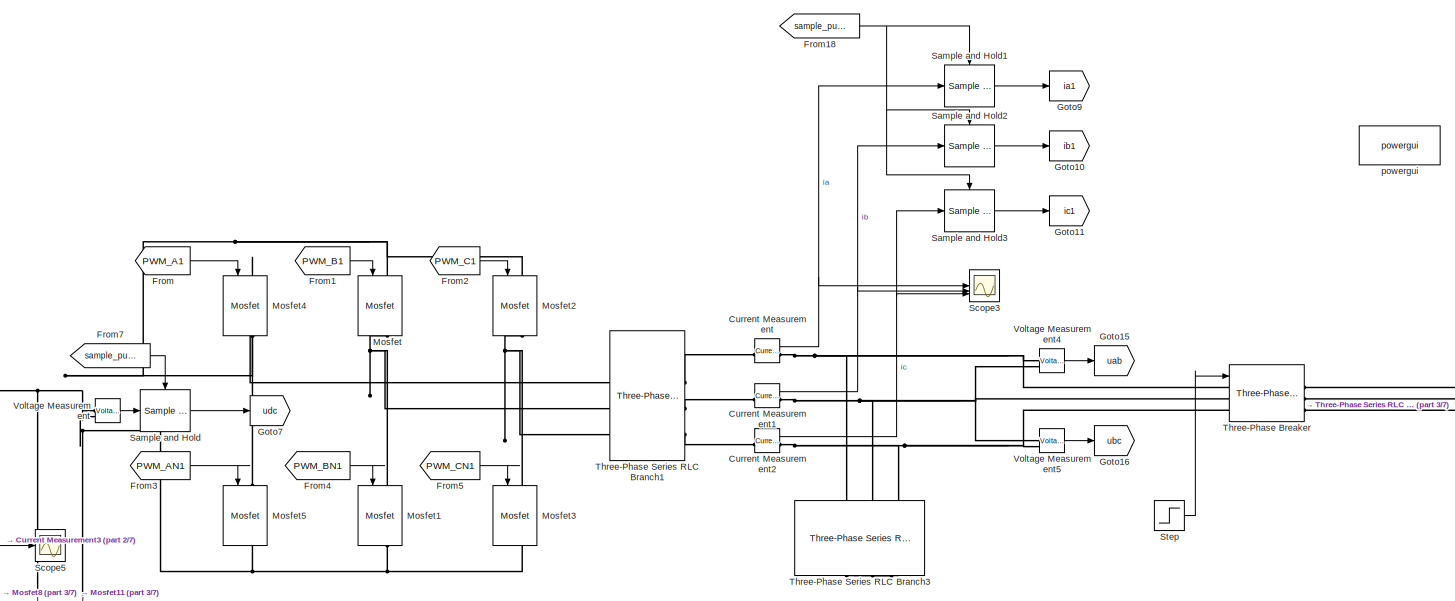
[diagram: root canvas - part 1/7, top right region]
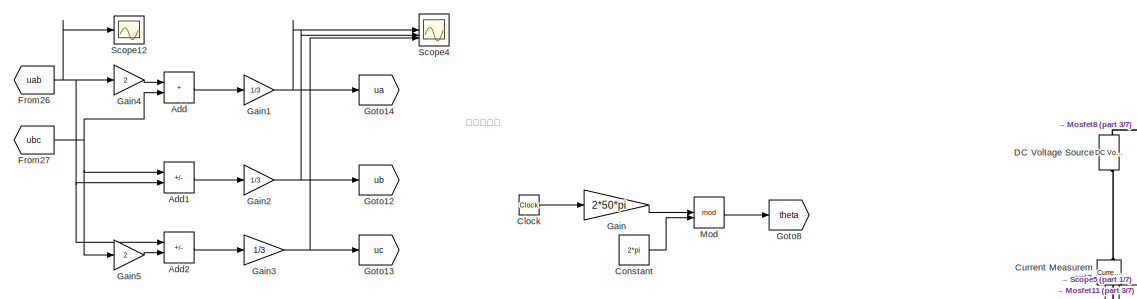
[diagram: root canvas - part 2/7, top center region]
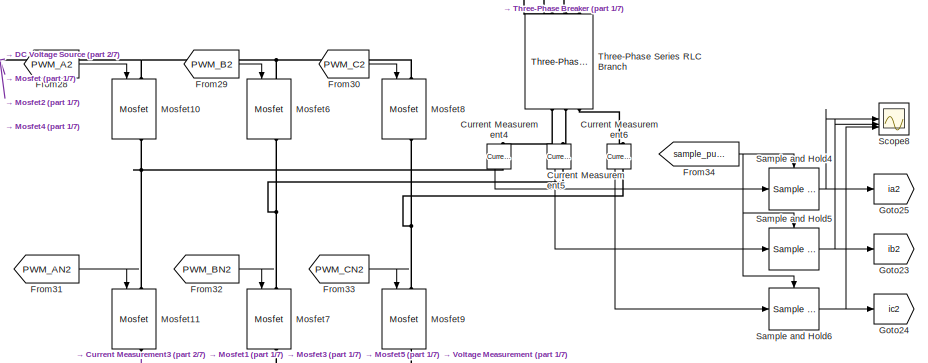
[diagram: root canvas - part 3/7, middle right region]
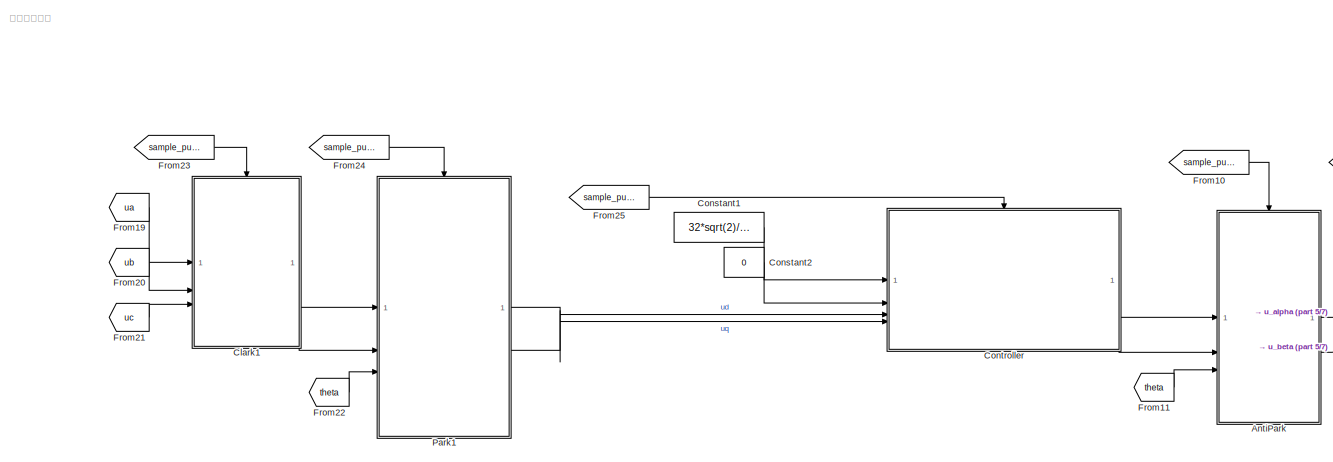
[diagram: root canvas - part 4/7, bottom left region]
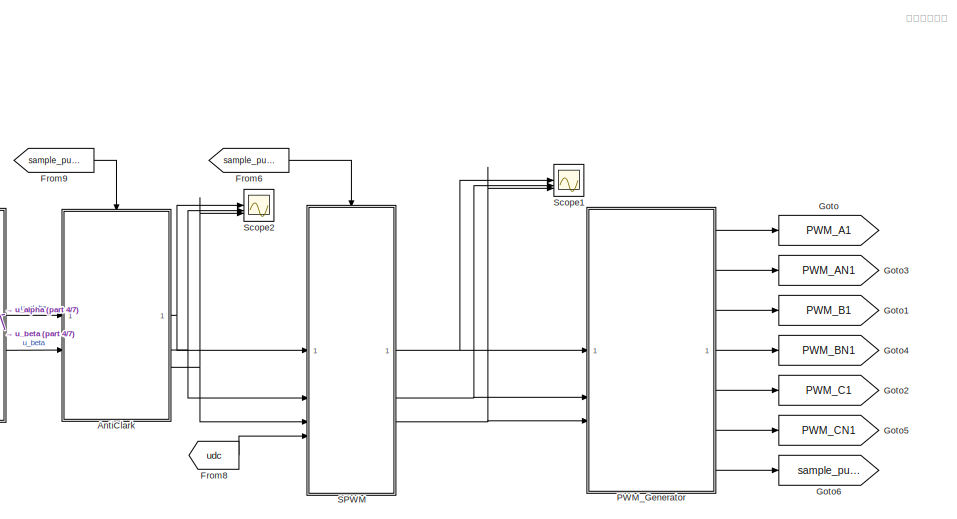
[diagram: root canvas - part 5/7, bottom center region]
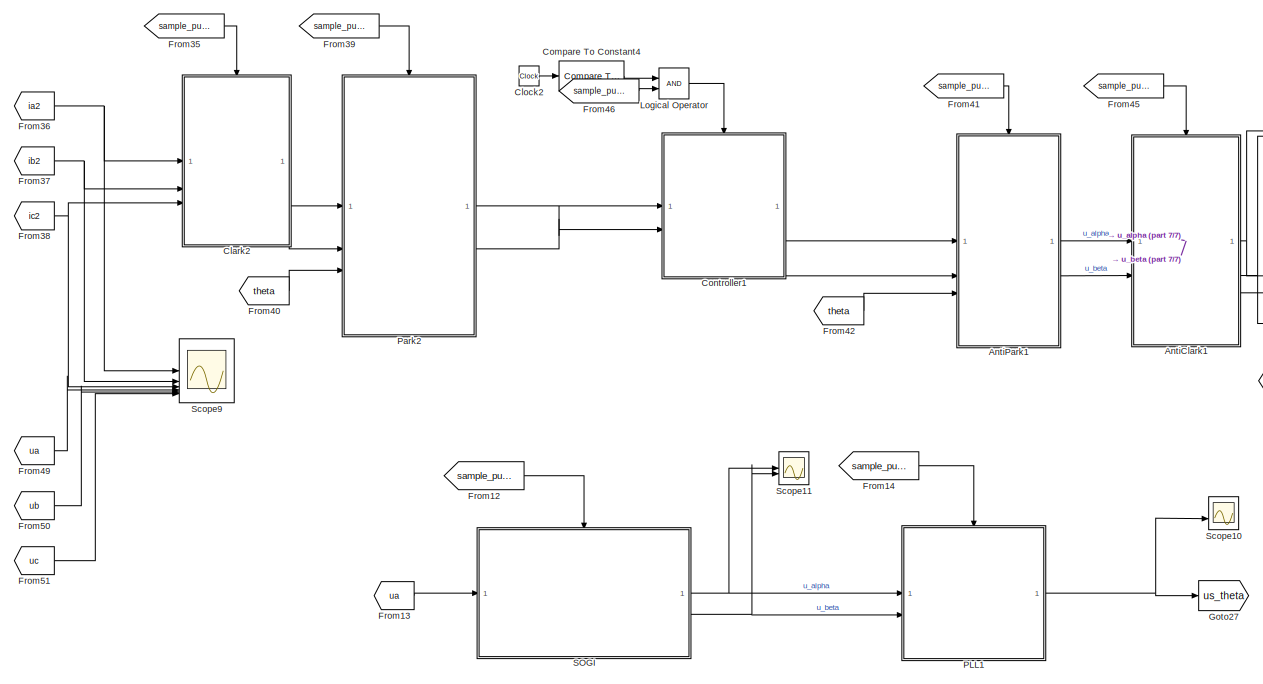
[diagram: root canvas - part 6/7, bottom center region]
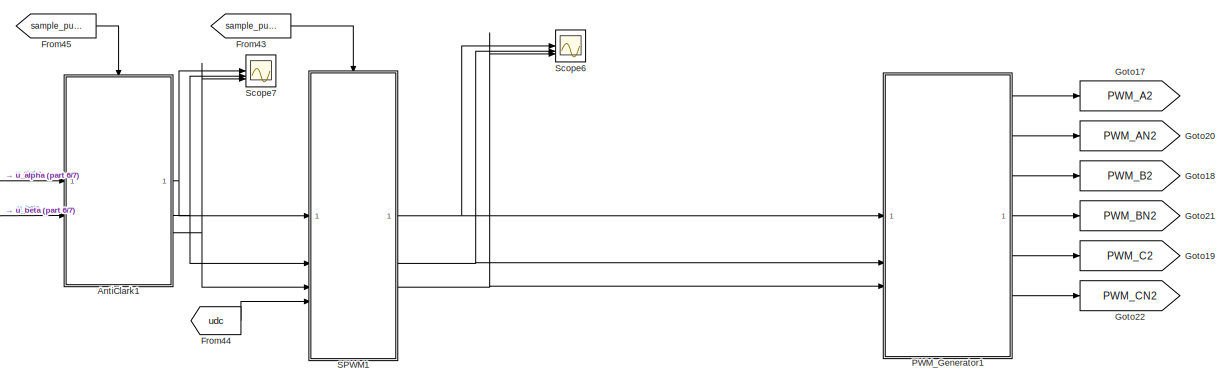
[diagram: root canvas - part 7/7, bottom right region]
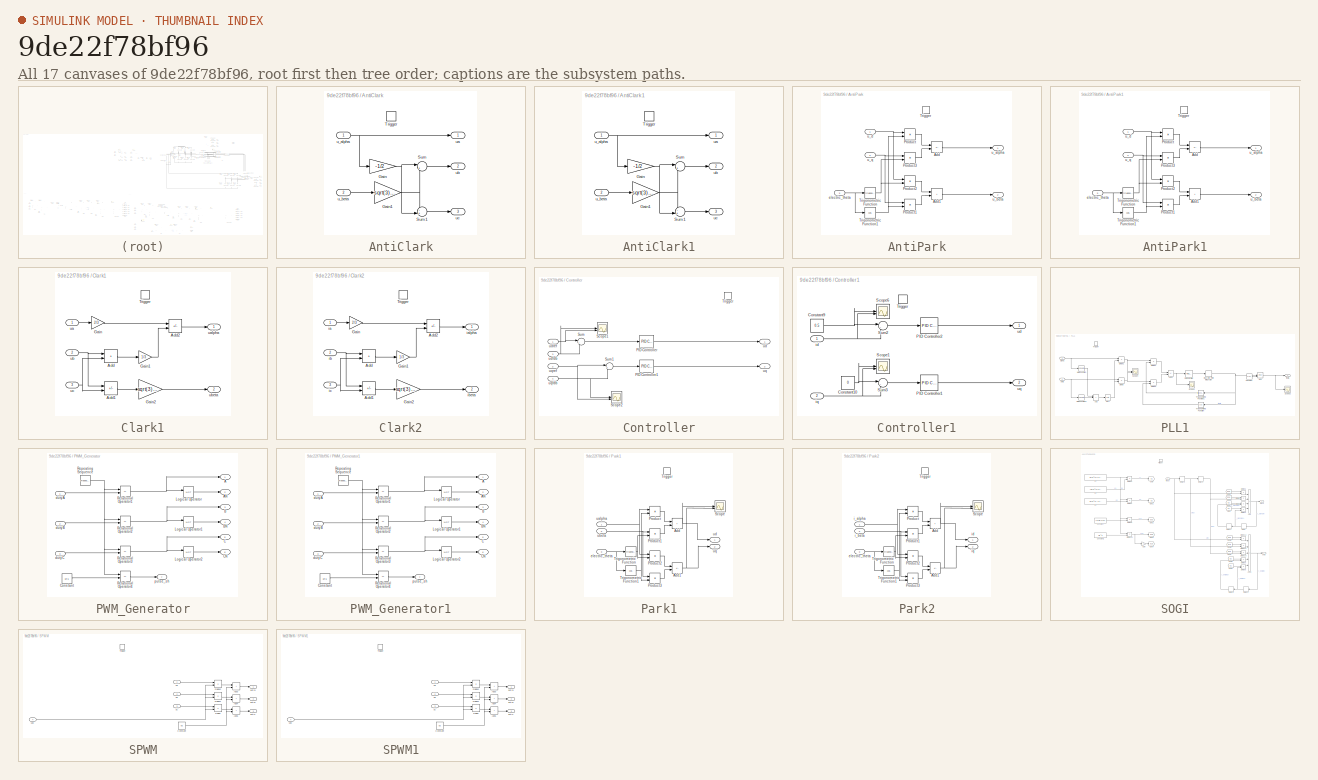
[diagram: thumbnail index - all 17 canvases of the model, root first then tree order]
MODEL slx_9de22f78bf96
KIND model
CONFIG AbsTol = auto
CONFIG EnableMultiTasking = off
CONFIG FixedStep = 1e-6
CONFIG MaxStep = 1e-7
CONFIG MinStep = auto
CONFIG RelTol = 1e-5
CONFIG SampleTimeConstraint = Unconstrained
CONFIG SolverName = VariableStepAuto
CONFIG StartTime = 0.0
CONFIG StopTime = 2
WORKSPACE source: mxarray member
WORKSPACE wr = 314.159265359
BLOCK [Sum] Add
  IconShape = rectangular
BLOCK [Sum] Add1
  IconShape = rectangular
  Inputs = +-
BLOCK [Sum] Add2
  IconShape = rectangular
  Inputs = --
BLOCK [SubSystem] AntiClark
BLOCK [Gain] AntiClark/Gain
  Gain = -1/2
BLOCK [Gain] AntiClark/Gain1
  Gain = sqrt(3)/2
BLOCK [Sum] AntiClark/Sum
  Inputs = |++
BLOCK [Sum] AntiClark/Sum1
  Inputs = -+|
BLOCK [TriggerPort] AntiClark/Trigger
  StatesWhenEnabling = held
  VariantControl = (inherit)
BLOCK [Inport] AntiClark/u_alpha
BLOCK [Inport] AntiClark/u_beta
  Port = 2
BLOCK [Outport] AntiClark/ua
BLOCK [Outport] AntiClark/ub
  Port = 2
BLOCK [Outport] AntiClark/uc
  Port = 3
BLOCK [SubSystem] AntiClark1
BLOCK [Gain] AntiClark1/Gain
  Gain = -1/2
BLOCK [Gain] AntiClark1/Gain1
  Gain = sqrt(3)/2
BLOCK [Sum] AntiClark1/Sum
  Inputs = |++
BLOCK [Sum] AntiClark1/Sum1
  Inputs = -+|
BLOCK [TriggerPort] AntiClark1/Trigger
  StatesWhenEnabling = held
  VariantControl = (inherit)
BLOCK [Inport] AntiClark1/u_alpha
BLOCK [Inport] AntiClark1/u_beta
  Port = 2
BLOCK [Outport] AntiClark1/ua
BLOCK [Outport] AntiClark1/ub
  Port = 2
BLOCK [Outport] AntiClark1/uc
  Port = 3
BLOCK [SubSystem] AntiPark
BLOCK [Sum] AntiPark/Add
  IconShape = rectangular
  Inputs = +-
BLOCK [Sum] AntiPark/Add1
  IconShape = rectangular
BLOCK [Product] AntiPark/Product
BLOCK [Product] AntiPark/Product1
BLOCK [Product] AntiPark/Product2
BLOCK [Product] AntiPark/Product3
BLOCK [TriggerPort] AntiPark/Trigger
  StatesWhenEnabling = held
  VariantControl = (inherit)
BLOCK [Trigonometry] AntiPark/Trigonometric Function
BLOCK [Trigonometry] AntiPark/Trigonometric Function1
  Operator = cos
BLOCK [Inport] AntiPark/electric_theta
  Port = 3
BLOCK [Outport] AntiPark/u_alpha
BLOCK [Outport] AntiPark/u_beta
  Port = 2
BLOCK [Inport] AntiPark/u_d
BLOCK [Inport] AntiPark/u_q
  Port = 2
BLOCK [SubSystem] AntiPark1
BLOCK [Sum] AntiPark1/Add
  IconShape = rectangular
  Inputs = +-
BLOCK [Sum] AntiPark1/Add1
  IconShape = rectangular
BLOCK [Product] AntiPark1/Product
BLOCK [Product] AntiPark1/Product1
BLOCK [Product] AntiPark1/Product2
BLOCK [Product] AntiPark1/Product3
BLOCK [TriggerPort] AntiPark1/Trigger
  StatesWhenEnabling = held
  VariantControl = (inherit)
BLOCK [Trigonometry] AntiPark1/Trigonometric Function
BLOCK [Trigonometry] AntiPark1/Trigonometric Function1
  Operator = cos
BLOCK [Inport] AntiPark1/electric_theta
  Port = 3
BLOCK [Outport] AntiPark1/u_alpha
BLOCK [Outport] AntiPark1/u_beta
  Port = 2
BLOCK [Inport] AntiPark1/u_d
BLOCK [Inport] AntiPark1/u_q
  Port = 2
BLOCK [SubSystem] Clark1
BLOCK [Sum] Clark1/Add
  IconShape = rectangular
BLOCK [Sum] Clark1/Add1
  IconShape = rectangular
  Inputs = +-
BLOCK [Sum] Clark1/Add2
  IconShape = rectangular
  Inputs = +-
BLOCK [Gain] Clark1/Gain
  Gain = 2/3
BLOCK [Gain] Clark1/Gain1
  Gain = 1/3
BLOCK [Gain] Clark1/Gain2
  Gain = sqrt(3)/3
BLOCK [TriggerPort] Clark1/Trigger
  StatesWhenEnabling = held
  VariantControl = (inherit)
BLOCK [Inport] Clark1/ua
BLOCK [Outport] Clark1/ualpha
BLOCK [Inport] Clark1/ub
  Port = 2
BLOCK [Outport] Clark1/ubeta
  Port = 2
BLOCK [Inport] Clark1/uc
  Port = 3
BLOCK [SubSystem] Clark2
BLOCK [Sum] Clark2/Add
  IconShape = rectangular
BLOCK [Sum] Clark2/Add1
  IconShape = rectangular
  Inputs = +-
BLOCK [Sum] Clark2/Add2
  IconShape = rectangular
  Inputs = +-
BLOCK [Gain] Clark2/Gain
  Gain = 2/3
BLOCK [Gain] Clark2/Gain1
  Gain = 1/3
BLOCK [Gain] Clark2/Gain2
  Gain = sqrt(3)/3
BLOCK [TriggerPort] Clark2/Trigger
  StatesWhenEnabling = held
  VariantControl = (inherit)
BLOCK [Inport] Clark2/ia
BLOCK [Outport] Clark2/ialpha
BLOCK [Inport] Clark2/ib
  Port = 2
BLOCK [Outport] Clark2/ibeta
  Port = 2
BLOCK [Inport] Clark2/ic
  Port = 3
BLOCK [Clock] Clock
BLOCK [Clock] Clock2
BLOCK [Reference] Compare To Constant4  REF=simulink/Logic and Bit
Operations/Compare
To Constant
  SourceBlock = simulink/Logic and Bit\nOperations/Compare\nTo Constant
  SourceType = Compare To Constant
BLOCK [Constant] Constant
  Value = 2*pi
BLOCK [Constant] Constant1
  Value = 32*sqrt(2)/sqrt(3)
BLOCK [Constant] Constant2
  Value = 0
BLOCK [SubSystem] Controller
BLOCK [Reference] Controller/PID Controller  REF=slpidlib/PID Controller
  LibrarySourceBlock = simulink/Continuous/PID Controller
  SourceBlock = slpidlib/PID Controller
  SourceType = PID 1dof
BLOCK [Reference] Controller/PID Controller1  REF=slpidlib/PID Controller
  LibrarySourceBlock = simulink/Continuous/PID Controller
  SourceBlock = slpidlib/PID Controller
  SourceType = PID 1dof
BLOCK [Scope] Controller/Scope1
  Floating = off
  NumInputPorts = 2
  ScopeSpecificationString = Simulink.scopes.TimeScopeBlockCfg('CurrentConfiguration', extmgr.ConfigurationSet(extmgr.Configuration('Core','General UI',true,'FigureColor',[1 1 1]),extmgr.Configuration('Core','Source UI',true),extmgr.Configuration('Sources','WiredSimulink',true,'DataLoggingVariableName','ScopeData4'),extmgr.Configuration('Visuals','Time Domain',true,'SerializedDisplays',{struct('MinYLimReal','-3.44311','MaxYLi...<+2350ch>
BLOCK [Scope] Controller/Scope2
  Floating = off
  NumInputPorts = 2
  ScopeSpecificationString = Simulink.scopes.TimeScopeBlockCfg('CurrentConfiguration', extmgr.ConfigurationSet(extmgr.Configuration('Core','General UI',true,'FigureColor',[1 1 1]),extmgr.Configuration('Core','Source UI',true),extmgr.Configuration('Sources','WiredSimulink',true,'DataLoggingVariableName','ScopeData5'),extmgr.Configuration('Visuals','Time Domain',true,'SerializedDisplays',{struct('MinYLimReal','-1.98058','MaxYLi...<+2586ch>
BLOCK [Sum] Controller/Sum
  Inputs = |+-
BLOCK [Sum] Controller/Sum1
  Inputs = |+-
BLOCK [TriggerPort] Controller/Trigger
  StatesWhenEnabling = held
  VariantControl = (inherit)
BLOCK [Outport] Controller/ud
BLOCK [Inport] Controller/udfdb
  Port = 3
BLOCK [Inport] Controller/udref
BLOCK [Outport] Controller/uq
  Port = 2
BLOCK [Inport] Controller/uqfdb
  Port = 4
BLOCK [Inport] Controller/uqref
  Port = 2
BLOCK [SubSystem] Controller1
BLOCK [Constant] Controller1/Constant10
  Value = 0
BLOCK [Constant] Controller1/Constant9
  Value = 0.5
BLOCK [Reference] Controller1/PID Controller1  REF=slpidlib/PID Controller
  LibrarySourceBlock = simulink/Continuous/PID Controller
  SourceBlock = slpidlib/PID Controller
  SourceType = PID 1dof
BLOCK [Reference] Controller1/PID Controller2  REF=slpidlib/PID Controller
  LibrarySourceBlock = simulink/Continuous/PID Controller
  SourceBlock = slpidlib/PID Controller
  SourceType = PID 1dof
BLOCK [Scope] Controller1/Scope1
  Floating = off
  NumInputPorts = 2
  ScopeSpecificationString = Simulink.scopes.TimeScopeBlockCfg('CurrentConfiguration', extmgr.ConfigurationSet(extmgr.Configuration('Core','General UI',true,'FigureColor',[1 1 1]),extmgr.Configuration('Core','Source UI',true),extmgr.Configuration('Sources','WiredSimulink',true,'DataLoggingVariableName','ScopeData9'),extmgr.Configuration('Visuals','Time Domain',true,'SerializedDisplays',{struct('MinYLimReal','-0.11246','MaxYLi...<+2718ch>
BLOCK [Scope] Controller1/Scope6
  Floating = off
  NumInputPorts = 2
  ScopeSpecificationString = Simulink.scopes.TimeScopeBlockCfg('CurrentConfiguration', extmgr.ConfigurationSet(extmgr.Configuration('Core','General UI',true,'FigureColor',[1 1 1]),extmgr.Configuration('Core','Source UI',true),extmgr.Configuration('Sources','WiredSimulink',true,'DataLoggingVariableName','ScopeData8'),extmgr.Configuration('Visuals','Time Domain',true,'SerializedDisplays',{struct('MinYLimReal','-2.19577','MaxYLi...<+2585ch>
BLOCK [Sum] Controller1/Sum2
  Inputs = |-+
BLOCK [Sum] Controller1/Sum3
  Inputs = |-+
BLOCK [TriggerPort] Controller1/Trigger
  StatesWhenEnabling = held
  VariantControl = (inherit)
BLOCK [Inport] Controller1/id
BLOCK [Inport] Controller1/iq
  Port = 2
BLOCK [Outport] Controller1/ud
BLOCK [Outport] Controller1/uq
  Port = 2
BLOCK [Reference] Current Measurement  REF=spsCurrentMeasurementLib/Current Measurement
  LibrarySourceBlock = sps_lib/Sensors and Measurements/Current Measurement
  SourceBlock = spsCurrentMeasurementLib/Current Measurement
  SourceType = Current Measurement
  UserDataPersistent = on
BLOCK [Reference] Current Measurement1  REF=spsCurrentMeasurementLib/Current Measurement
  LibrarySourceBlock = sps_lib/Sensors and Measurements/Current Measurement
  SourceBlock = spsCurrentMeasurementLib/Current Measurement
  SourceType = Current Measurement
  UserDataPersistent = on
BLOCK [Reference] Current Measurement2  REF=spsCurrentMeasurementLib/Current Measurement
  LibrarySourceBlock = sps_lib/Sensors and Measurements/Current Measurement
  SourceBlock = spsCurrentMeasurementLib/Current Measurement
  SourceType = Current Measurement
  UserDataPersistent = on
BLOCK [Reference] Current Measurement3  REF=spsCurrentMeasurementLib/Current Measurement
  LibrarySourceBlock = sps_lib/Sensors and Measurements/Current Measurement
  NameLocation = left
  SourceBlock = spsCurrentMeasurementLib/Current Measurement
  SourceType = Current Measurement
  UserDataPersistent = on
BLOCK [Reference] Current Measurement4  REF=spsCurrentMeasurementLib/Current Measurement
  LibrarySourceBlock = sps_lib/Sensors and Measurements/Current Measurement
  NameLocation = left
  SourceBlock = spsCurrentMeasurementLib/Current Measurement
  SourceType = Current Measurement
  UserDataPersistent = on
BLOCK [Reference] Current Measurement5  REF=spsCurrentMeasurementLib/Current Measurement
  LibrarySourceBlock = sps_lib/Sensors and Measurements/Current Measurement
  NameLocation = left
  SourceBlock = spsCurrentMeasurementLib/Current Measurement
  SourceType = Current Measurement
  UserDataPersistent = on
BLOCK [Reference] Current Measurement6  REF=spsCurrentMeasurementLib/Current Measurement
  LibrarySourceBlock = sps_lib/Sensors and Measurements/Current Measurement
  NameLocation = left
  SourceBlock = spsCurrentMeasurementLib/Current Measurement
  SourceType = Current Measurement
  UserDataPersistent = on
BLOCK [Reference] DC Voltage Source  REF=spsDCVoltageSourceLib/DC Voltage Source
  LibrarySourceBlock = sps_lib/Sources/DC Voltage Source
  SourceBlock = spsDCVoltageSourceLib/DC Voltage Source
  SourceType = DC Voltage Source
BLOCK [From] From
  GotoTag = PWM_A1
BLOCK [From] From1
  GotoTag = PWM_B1
BLOCK [From] From10
  GotoTag = sample_pulse
BLOCK [From] From11
  GotoTag = theta
BLOCK [From] From12
  Commented = on
  GotoTag = sample_pulse
BLOCK [From] From13
  Commented = on
  GotoTag = ua
BLOCK [From] From14
  Commented = on
  GotoTag = sample_pulse
BLOCK [From] From18
  GotoTag = sample_pulse
BLOCK [From] From19
  GotoTag = ua
BLOCK [From] From2
  GotoTag = PWM_C1
BLOCK [From] From20
  GotoTag = ub
BLOCK [From] From21
  GotoTag = uc
BLOCK [From] From22
  GotoTag = theta
BLOCK [From] From23
  GotoTag = sample_pulse
BLOCK [From] From24
  GotoTag = sample_pulse
BLOCK [From] From25
  GotoTag = sample_pulse
BLOCK [From] From26
  GotoTag = uab
BLOCK [From] From27
  GotoTag = ubc
BLOCK [From] From28
  GotoTag = PWM_A2
BLOCK [From] From29
  GotoTag = PWM_B2
BLOCK [From] From3
  GotoTag = PWM_AN1
BLOCK [From] From30
  GotoTag = PWM_C2
BLOCK [From] From31
  GotoTag = PWM_AN2
BLOCK [From] From32
  GotoTag = PWM_BN2
BLOCK [From] From33
  GotoTag = PWM_CN2
BLOCK [From] From34
  GotoTag = sample_pulse
BLOCK [From] From35
  GotoTag = sample_pulse
BLOCK [From] From36
  GotoTag = ia2
BLOCK [From] From37
  GotoTag = ib2
BLOCK [From] From38
  GotoTag = ic2
BLOCK [From] From39
  GotoTag = sample_pulse
BLOCK [From] From4
  GotoTag = PWM_BN1
BLOCK [From] From40
  GotoTag = theta
BLOCK [From] From41
  GotoTag = sample_pulse
BLOCK [From] From42
  GotoTag = theta
BLOCK [From] From43
  GotoTag = sample_pulse
BLOCK [From] From44
  GotoTag = udc
BLOCK [From] From45
  GotoTag = sample_pulse
BLOCK [From] From46
  GotoTag = sample_pulse
BLOCK [From] From49
  GotoTag = ua
BLOCK [From] From5
  GotoTag = PWM_CN1
BLOCK [From] From50
  GotoTag = ub
BLOCK [From] From51
  GotoTag = uc
BLOCK [From] From6
  GotoTag = sample_pulse
BLOCK [From] From7
  GotoTag = sample_pulse
BLOCK [From] From8
  GotoTag = udc
BLOCK [From] From9
  GotoTag = sample_pulse
BLOCK [Gain] Gain
  Gain = 2*50*pi
BLOCK [Gain] Gain1
  Gain = 1/3
BLOCK [Gain] Gain2
  Gain = 1/3
BLOCK [Gain] Gain3
  Gain = 1/3
BLOCK [Gain] Gain4
  Gain = 2
BLOCK [Gain] Gain5
  Gain = 2
BLOCK [Goto] Goto
  GotoTag = PWM_A1
BLOCK [Goto] Goto1
  GotoTag = PWM_B1
BLOCK [Goto] Goto10
  GotoTag = ib1
BLOCK [Goto] Goto11
  GotoTag = ic1
BLOCK [Goto] Goto12
  GotoTag = ub
BLOCK [Goto] Goto13
  GotoTag = uc
BLOCK [Goto] Goto14
  GotoTag = ua
BLOCK [Goto] Goto15
  GotoTag = uab
BLOCK [Goto] Goto16
  GotoTag = ubc
BLOCK [Goto] Goto17
  GotoTag = PWM_A2
BLOCK [Goto] Goto18
  GotoTag = PWM_B2
BLOCK [Goto] Goto19
  GotoTag = PWM_C2
BLOCK [Goto] Goto2
  GotoTag = PWM_C1
BLOCK [Goto] Goto20
  GotoTag = PWM_AN2
BLOCK [Goto] Goto21
  GotoTag = PWM_BN2
BLOCK [Goto] Goto22
  GotoTag = PWM_CN2
BLOCK [Goto] Goto23
  GotoTag = ib2
BLOCK [Goto] Goto24
  GotoTag = ic2
BLOCK [Goto] Goto25
  GotoTag = ia2
BLOCK [Goto] Goto27
  Commented = on
  GotoTag = us_theta
BLOCK [Goto] Goto3
  GotoTag = PWM_AN1
BLOCK [Goto] Goto4
  GotoTag = PWM_BN1
BLOCK [Goto] Goto5
  GotoTag = PWM_CN1
BLOCK [Goto] Goto6
  GotoTag = sample_pulse
BLOCK [Goto] Goto7
  GotoTag = udc
BLOCK [Goto] Goto8
  GotoTag = theta
BLOCK [Goto] Goto9
  GotoTag = ia1
BLOCK [Logic] Logical Operator
  AllPortsSameDT = off
  OutDataTypeStr = boolean
BLOCK [Math] Mod
  Operator = mod
BLOCK [Reference] Mosfet  REF=spsMosfetLib/Mosfet
  LibrarySourceBlock = sps_lib/Power Electronics/Mosfet
  NameLocation = left
  SourceBlock = spsMosfetLib/Mosfet
  SourceType = Mosfet
BLOCK [Reference] Mosfet1  REF=spsMosfetLib/Mosfet
  LibrarySourceBlock = sps_lib/Power Electronics/Mosfet
  NameLocation = left
  SourceBlock = spsMosfetLib/Mosfet
  SourceType = Mosfet
BLOCK [Reference] Mosfet10  REF=spsMosfetLib/Mosfet
  LibrarySourceBlock = sps_lib/Power Electronics/Mosfet
  NameLocation = left
  SourceBlock = spsMosfetLib/Mosfet
  SourceType = Mosfet
BLOCK [Reference] Mosfet11  REF=spsMosfetLib/Mosfet
  LibrarySourceBlock = sps_lib/Power Electronics/Mosfet
  NameLocation = left
  SourceBlock = spsMosfetLib/Mosfet
  SourceType = Mosfet
BLOCK [Reference] Mosfet2  REF=spsMosfetLib/Mosfet
  LibrarySourceBlock = sps_lib/Power Electronics/Mosfet
  NameLocation = left
  SourceBlock = spsMosfetLib/Mosfet
  SourceType = Mosfet
BLOCK [Reference] Mosfet3  REF=spsMosfetLib/Mosfet
  LibrarySourceBlock = sps_lib/Power Electronics/Mosfet
  NameLocation = left
  SourceBlock = spsMosfetLib/Mosfet
  SourceType = Mosfet
BLOCK [Reference] Mosfet4  REF=spsMosfetLib/Mosfet
  LibrarySourceBlock = sps_lib/Power Electronics/Mosfet
  NameLocation = left
  SourceBlock = spsMosfetLib/Mosfet
  SourceType = Mosfet
BLOCK [Reference] Mosfet5  REF=spsMosfetLib/Mosfet
  LibrarySourceBlock = sps_lib/Power Electronics/Mosfet
  NameLocation = left
  SourceBlock = spsMosfetLib/Mosfet
  SourceType = Mosfet
BLOCK [Reference] Mosfet6  REF=spsMosfetLib/Mosfet
  LibrarySourceBlock = sps_lib/Power Electronics/Mosfet
  NameLocation = left
  SourceBlock = spsMosfetLib/Mosfet
  SourceType = Mosfet
BLOCK [Reference] Mosfet7  REF=spsMosfetLib/Mosfet
  LibrarySourceBlock = sps_lib/Power Electronics/Mosfet
  NameLocation = left
  SourceBlock = spsMosfetLib/Mosfet
  SourceType = Mosfet
BLOCK [Reference] Mosfet8  REF=spsMosfetLib/Mosfet
  LibrarySourceBlock = sps_lib/Power Electronics/Mosfet
  NameLocation = left
  SourceBlock = spsMosfetLib/Mosfet
  SourceType = Mosfet
BLOCK [Reference] Mosfet9  REF=spsMosfetLib/Mosfet
  LibrarySourceBlock = sps_lib/Power Electronics/Mosfet
  NameLocation = left
  SourceBlock = spsMosfetLib/Mosfet
  SourceType = Mosfet
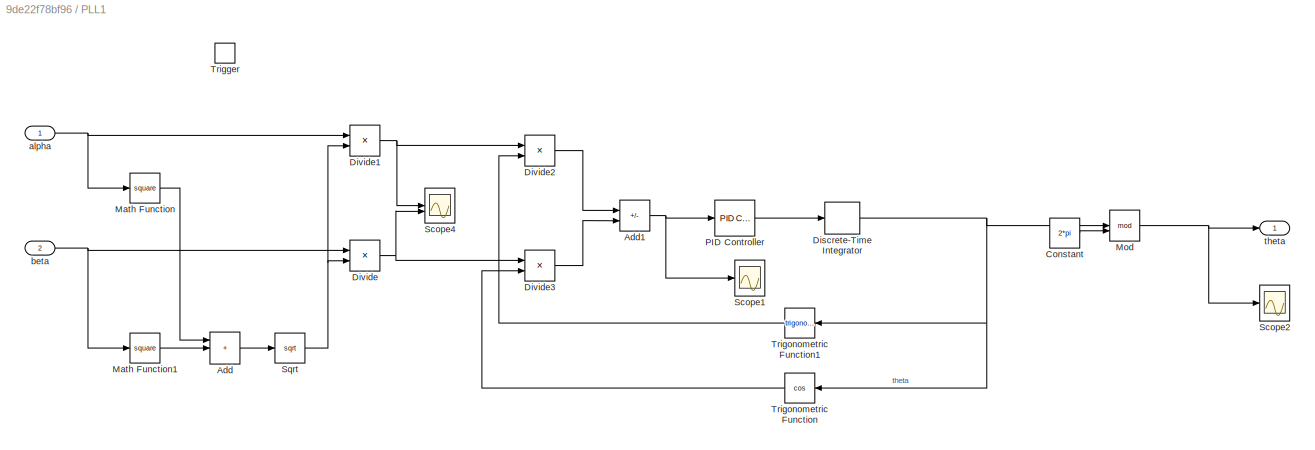
BLOCK [SubSystem] PLL1
  Commented = on
  TreatAsAtomicUnit = on
BLOCK [Sum] PLL1/Add
  IconShape = rectangular
  Inputs = +++
BLOCK [Sum] PLL1/Add1
  IconShape = rectangular
  Inputs = -+
BLOCK [Constant] PLL1/Constant
  Value = 2*pi
BLOCK [DiscreteIntegrator] PLL1/Discrete-Time Integrator
  ICPrevOutput = DiscIntNeverNeededParam
  ICPrevScaledInput = DiscIntNeverNeededParam
  InitialConditionSetting = Auto
  SampleTime = -1
BLOCK [Product] PLL1/Divide
  Inputs = */
BLOCK [Product] PLL1/Divide1
  Inputs = */
BLOCK [Product] PLL1/Divide2
  Inputs = **
BLOCK [Product] PLL1/Divide3
  Inputs = **
BLOCK [Math] PLL1/Math Function
  Operator = square
BLOCK [Math] PLL1/Math Function1
  Operator = square
BLOCK [Math] PLL1/Mod
  Operator = mod
BLOCK [Reference] PLL1/PID Controller  REF=slpidlib/PID Controller
  LibrarySourceBlock = simulink/Continuous/PID Controller
  SourceBlock = slpidlib/PID Controller
  SourceType = PID 1dof
BLOCK [Scope] PLL1/Scope1
  Floating = off
  NumInputPorts = 1
  ScopeSpecificationString = Simulink.scopes.TimeScopeBlockCfg('CurrentConfiguration', extmgr.ConfigurationSet(extmgr.Configuration('Core','General UI',true,'FigureColor',[1 1 1]),extmgr.Configuration('Core','Source UI',true),extmgr.Configuration('Sources','WiredSimulink',true,'DataLoggingVariableName','ScopeData4'),extmgr.Configuration('Visuals','Time Domain',true,'SerializedDisplays',{struct('MinYLimReal','-0.00633','MaxYLi...<+2303ch>
BLOCK [Scope] PLL1/Scope2
  Floating = off
  NumInputPorts = 1
  ScopeSpecificationString = Simulink.scopes.TimeScopeBlockCfg('CurrentConfiguration', extmgr.ConfigurationSet(extmgr.Configuration('Core','General UI',true,'FigureColor',[1 1 1]),extmgr.Configuration('Core','Source UI',true),extmgr.Configuration('Sources','WiredSimulink',true,'DataLoggingVariableName','ScopeData5'),extmgr.Configuration('Visuals','Time Domain',true,'SerializedDisplays',{struct('MinYLimReal','-0.78516','MaxYLi...<+2633ch>
BLOCK [Scope] PLL1/Scope4
  Floating = off
  NumInputPorts = 2
  ScopeSpecificationString = Simulink.scopes.TimeScopeBlockCfg('CurrentConfiguration', extmgr.ConfigurationSet(extmgr.Configuration('Core','General UI',true,'FigureColor',[1 1 1]),extmgr.Configuration('Core','Source UI',true),extmgr.Configuration('Sources','WiredSimulink',true,'DataLoggingVariableName','ScopeData3'),extmgr.Configuration('Visuals','Time Domain',true,'SerializedDisplays',{struct('MinYLimReal','-1.24465','MaxYLi...<+2311ch>
BLOCK [Sqrt] PLL1/Sqrt
BLOCK [TriggerPort] PLL1/Trigger
  StatesWhenEnabling = held
  VariantControl = (inherit)
BLOCK [Trigonometry] PLL1/Trigonometric Function
  NameLocation = top
  Operator = cos
BLOCK [Trigonometry] PLL1/Trigonometric Function1
  NameLocation = top
BLOCK [Inport] PLL1/alpha
BLOCK [Inport] PLL1/beta
  Port = 2
BLOCK [Outport] PLL1/theta
BLOCK [SubSystem] PWM_Generator
BLOCK [Outport] PWM_Generator/A
BLOCK [Outport] PWM_Generator/AN
  Port = 2
BLOCK [Outport] PWM_Generator/B
  Port = 3
BLOCK [Outport] PWM_Generator/BN
  Port = 4
BLOCK [Outport] PWM_Generator/C
  Port = 5
BLOCK [Outport] PWM_Generator/CN
  Port = 6
BLOCK [Constant] PWM_Generator/Constant
  Value = 1e-6
BLOCK [Logic] PWM_Generator/Logical Operator
  AllPortsSameDT = off
  Operator = NOT
  OutDataTypeStr = boolean
BLOCK [Logic] PWM_Generator/Logical Operator1
  AllPortsSameDT = off
  Operator = NOT
  OutDataTypeStr = boolean
BLOCK [Logic] PWM_Generator/Logical Operator2
  AllPortsSameDT = off
  Operator = NOT
  OutDataTypeStr = boolean
BLOCK [RelationalOperator] PWM_Generator/Relational Operator1
  InputSameDT = off
  Operator = <=
  OutDataTypeStr = boolean
  RndMeth = Simplest
BLOCK [RelationalOperator] PWM_Generator/Relational Operator2
  InputSameDT = off
  Operator = <=
  OutDataTypeStr = boolean
  RndMeth = Simplest
BLOCK [RelationalOperator] PWM_Generator/Relational Operator3
  InputSameDT = off
  Operator = <=
  OutDataTypeStr = boolean
  RndMeth = Simplest
BLOCK [RelationalOperator] PWM_Generator/Relational Operator4
  InputSameDT = off
  Operator = <=
  OutDataTypeStr = boolean
  RndMeth = Simplest
BLOCK [Reference] PWM_Generator/Repeating Sequence  REF=simulink/Sources/Repeating
Sequence
  SourceBlock = simulink/Sources/Repeating\nSequence
  SourceType = Repeating table
BLOCK [Inport] PWM_Generator/dutyA
BLOCK [Inport] PWM_Generator/dutyB
  Port = 2
BLOCK [Inport] PWM_Generator/dutyC
  Port = 3
BLOCK [Outport] PWM_Generator/pulse_sh
  Port = 7
BLOCK [SubSystem] PWM_Generator1
BLOCK [Outport] PWM_Generator1/A
BLOCK [Outport] PWM_Generator1/AN
  Port = 2
BLOCK [Outport] PWM_Generator1/B
  Port = 3
BLOCK [Outport] PWM_Generator1/BN
  Port = 4
BLOCK [Outport] PWM_Generator1/C
  Port = 5
BLOCK [Outport] PWM_Generator1/CN
  Port = 6
BLOCK [Constant] PWM_Generator1/Constant
  Value = 1e-6
BLOCK [Logic] PWM_Generator1/Logical Operator
  AllPortsSameDT = off
  Operator = NOT
  OutDataTypeStr = boolean
BLOCK [Logic] PWM_Generator1/Logical Operator1
  AllPortsSameDT = off
  Operator = NOT
  OutDataTypeStr = boolean
BLOCK [Logic] PWM_Generator1/Logical Operator2
  AllPortsSameDT = off
  Operator = NOT
  OutDataTypeStr = boolean
BLOCK [RelationalOperator] PWM_Generator1/Relational Operator1
  InputSameDT = off
  Operator = <=
  OutDataTypeStr = boolean
  RndMeth = Simplest
BLOCK [RelationalOperator] PWM_Generator1/Relational Operator2
  InputSameDT = off
  Operator = <=
  OutDataTypeStr = boolean
  RndMeth = Simplest
BLOCK [RelationalOperator] PWM_Generator1/Relational Operator3
  InputSameDT = off
  Operator = <=
  OutDataTypeStr = boolean
  RndMeth = Simplest
BLOCK [RelationalOperator] PWM_Generator1/Relational Operator4
  InputSameDT = off
  Operator = <=
  OutDataTypeStr = boolean
  RndMeth = Simplest
BLOCK [Reference] PWM_Generator1/Repeating Sequence  REF=simulink/Sources/Repeating
Sequence
  SourceBlock = simulink/Sources/Repeating\nSequence
  SourceType = Repeating table
BLOCK [Inport] PWM_Generator1/dutyA
BLOCK [Inport] PWM_Generator1/dutyB
  Port = 2
BLOCK [Inport] PWM_Generator1/dutyC
  Port = 3
BLOCK [Outport] PWM_Generator1/pulse_sh
  Port = 7
BLOCK [SubSystem] Park1
BLOCK [Sum] Park1/Add
  IconShape = rectangular
BLOCK [Sum] Park1/Add1
  IconShape = rectangular
  Inputs = -+
BLOCK [Product] Park1/Product
BLOCK [Product] Park1/Product1
BLOCK [Product] Park1/Product2
BLOCK [Product] Park1/Product3
BLOCK [Scope] Park1/Scope
  Floating = off
  NumInputPorts = 2
  ScopeSpecificationString = Simulink.scopes.TimeScopeBlockCfg('CurrentConfiguration', extmgr.ConfigurationSet(extmgr.Configuration('Core','General UI',true),extmgr.Configuration('Core','Source UI',true),extmgr.Configuration('Sources','WiredSimulink',true,'DataLoggingVariableName','ScopeData3'),extmgr.Configuration('Visuals','Time Domain',true,'SerializedDisplays',{struct('MinYLimReal','-0.53079','MaxYLimReal','2.90578','YLab...<+1369ch>
BLOCK [TriggerPort] Park1/Trigger
  StatesWhenEnabling = held
  VariantControl = (inherit)
BLOCK [Trigonometry] Park1/Trigonometric Function
BLOCK [Trigonometry] Park1/Trigonometric Function1
  Operator = cos
BLOCK [Inport] Park1/electric_theta
  Port = 3
BLOCK [Inport] Park1/ualpha
BLOCK [Inport] Park1/ubeta
  Port = 2
BLOCK [Outport] Park1/ud
BLOCK [Outport] Park1/uq
  Port = 2
BLOCK [SubSystem] Park2
BLOCK [Sum] Park2/Add
  IconShape = rectangular
BLOCK [Sum] Park2/Add1
  IconShape = rectangular
  Inputs = -+
BLOCK [Product] Park2/Product
BLOCK [Product] Park2/Product1
BLOCK [Product] Park2/Product2
BLOCK [Product] Park2/Product3
BLOCK [Scope] Park2/Scope
  Floating = off
  NumInputPorts = 2
  ScopeSpecificationString = Simulink.scopes.TimeScopeBlockCfg('CurrentConfiguration', extmgr.ConfigurationSet(extmgr.Configuration('Core','General UI',true),extmgr.Configuration('Core','Source UI',true),extmgr.Configuration('Sources','WiredSimulink',true,'DataLoggingVariableName','ScopeData3'),extmgr.Configuration('Visuals','Time Domain',true,'SerializedDisplays',{struct('MinYLimReal','-0.53079','MaxYLimReal','2.90578','YLab...<+1369ch>
BLOCK [TriggerPort] Park2/Trigger
  StatesWhenEnabling = held
  VariantControl = (inherit)
BLOCK [Trigonometry] Park2/Trigonometric Function
BLOCK [Trigonometry] Park2/Trigonometric Function1
  Operator = cos
BLOCK [Inport] Park2/electric_theta
  Port = 3
BLOCK [Inport] Park2/i_alpha
BLOCK [Inport] Park2/i_beta
  Port = 2
BLOCK [Outport] Park2/id
BLOCK [Outport] Park2/iq
  Port = 2
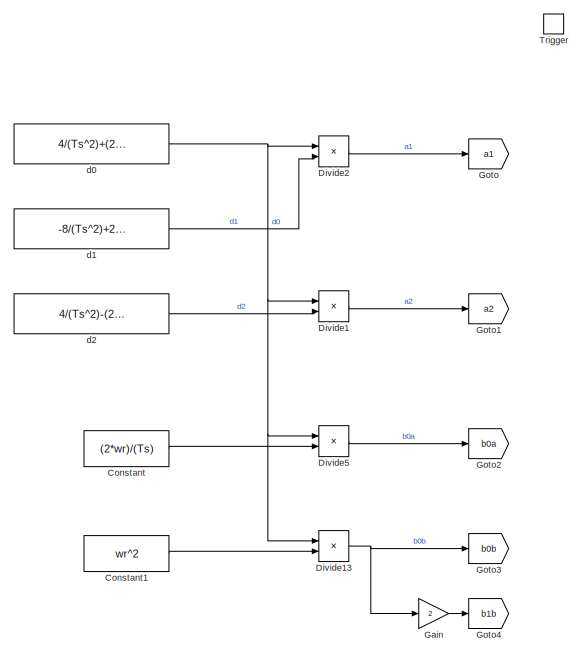
[diagram: SOGI - part 1/2, middle left region]
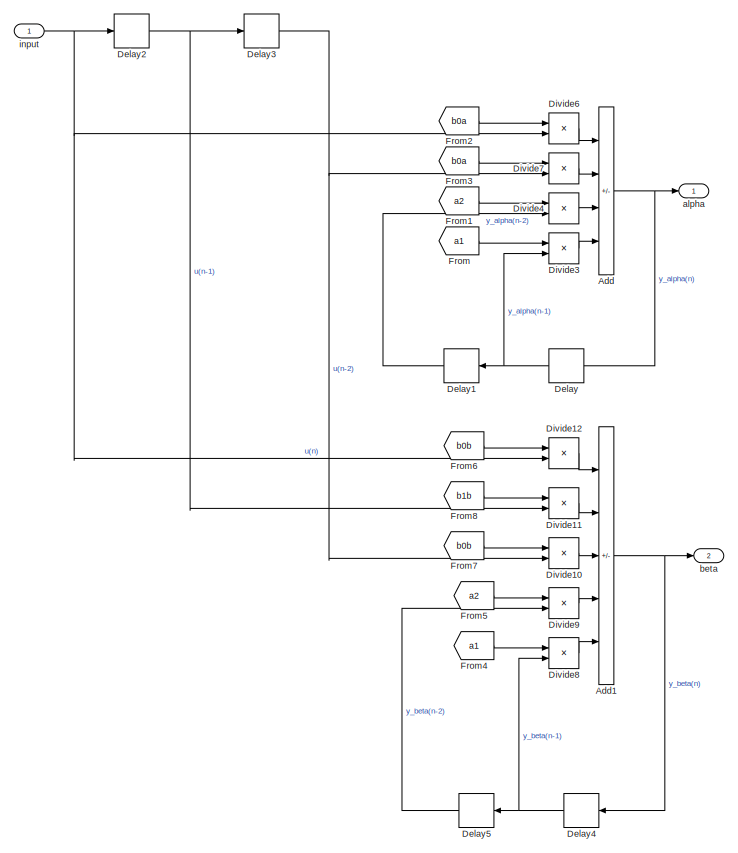
[diagram: SOGI - part 2/2, right side, full height]
BLOCK [SubSystem] SOGI
  Commented = on
  TreatAsAtomicUnit = on
BLOCK [Sum] SOGI/Add
  IconShape = rectangular
  Inputs = +---
BLOCK [Sum] SOGI/Add1
  IconShape = rectangular
  Inputs = +++--
BLOCK [Constant] SOGI/Constant
  Value = (2*wr)/(Ts)
BLOCK [Constant] SOGI/Constant1
  Value = wr^2
BLOCK [Delay] SOGI/Delay
  DelayLength = 1
  InitialCondition = 0
  InputPortMap = u0
  NameLocation = top
BLOCK [Delay] SOGI/Delay1
  DelayLength = 1
  InitialCondition = 0
  InputPortMap = u0
  NameLocation = top
BLOCK [Delay] SOGI/Delay2
  DelayLength = 1
  InitialCondition = 0
  InputPortMap = u0
BLOCK [Delay] SOGI/Delay3
  DelayLength = 1
  InitialCondition = 0
  InputPortMap = u0
BLOCK [Delay] SOGI/Delay4
  DelayLength = 1
  InitialCondition = 0
  InputPortMap = u0
  NameLocation = top
BLOCK [Delay] SOGI/Delay5
  DelayLength = 1
  InitialCondition = 0
  InputPortMap = u0
  NameLocation = top
BLOCK [Product] SOGI/Divide1
  Inputs = /*
BLOCK [Product] SOGI/Divide10
  Inputs = **
BLOCK [Product] SOGI/Divide11
  Inputs = **
BLOCK [Product] SOGI/Divide12
  Inputs = **
BLOCK [Product] SOGI/Divide13
  Inputs = /*
BLOCK [Product] SOGI/Divide2
  Inputs = /*
BLOCK [Product] SOGI/Divide3
  Inputs = **
BLOCK [Product] SOGI/Divide4
  Inputs = **
BLOCK [Product] SOGI/Divide5
  Inputs = /*
BLOCK [Product] SOGI/Divide6
  Inputs = **
BLOCK [Product] SOGI/Divide7
  Inputs = **
BLOCK [Product] SOGI/Divide8
  Inputs = **
BLOCK [Product] SOGI/Divide9
  Inputs = **
BLOCK [From] SOGI/From
  GotoTag = a1
BLOCK [From] SOGI/From1
  GotoTag = a2
BLOCK [From] SOGI/From2
  GotoTag = b0a
BLOCK [From] SOGI/From3
  GotoTag = b0a
BLOCK [From] SOGI/From4
  GotoTag = a1
BLOCK [From] SOGI/From5
  GotoTag = a2
BLOCK [From] SOGI/From6
  GotoTag = b0b
BLOCK [From] SOGI/From7
  GotoTag = b0b
BLOCK [From] SOGI/From8
  GotoTag = b1b
BLOCK [Gain] SOGI/Gain
  Gain = 2
BLOCK [Goto] SOGI/Goto
  GotoTag = a1
BLOCK [Goto] SOGI/Goto1
  GotoTag = a2
BLOCK [Goto] SOGI/Goto2
  GotoTag = b0a
BLOCK [Goto] SOGI/Goto3
  GotoTag = b0b
BLOCK [Goto] SOGI/Goto4
  GotoTag = b1b
BLOCK [TriggerPort] SOGI/Trigger
  StatesWhenEnabling = held
  VariantControl = (inherit)
BLOCK [Outport] SOGI/alpha
BLOCK [Outport] SOGI/beta
  Port = 2
BLOCK [Constant] SOGI/d0
  Value = 4/(Ts^2)+(2*wr)/(Ts)+(wr^2)
BLOCK [Constant] SOGI/d1
  Value = -8/(Ts^2)+2*(wr^2)
BLOCK [Constant] SOGI/d2
  Value = 4/(Ts^2)-(2*wr)/(Ts)+(wr^2)
BLOCK [Inport] SOGI/input
BLOCK [SubSystem] SPWM
BLOCK [Sum] SPWM/Add3
  IconShape = rectangular
BLOCK [Sum] SPWM/Add4
  IconShape = rectangular
BLOCK [Sum] SPWM/Add5
  IconShape = rectangular
BLOCK [Constant] SPWM/Constant
  Value = 0.5
BLOCK [Product] SPWM/Divide
  Inputs = */
BLOCK [Product] SPWM/Divide1
  Inputs = */
BLOCK [Product] SPWM/Divide2
  Inputs = */
BLOCK [TriggerPort] SPWM/Trigger
  StatesWhenEnabling = held
  VariantControl = (inherit)
BLOCK [Outport] SPWM/dutya
BLOCK [Outport] SPWM/dutyb
  Port = 2
BLOCK [Outport] SPWM/dutyc
  Port = 3
BLOCK [Inport] SPWM/ua
BLOCK [Inport] SPWM/ub
  Port = 2
BLOCK [Inport] SPWM/uc
  Port = 3
BLOCK [Inport] SPWM/udc
  Port = 4
BLOCK [SubSystem] SPWM1
BLOCK [Sum] SPWM1/Add3
  IconShape = rectangular
BLOCK [Sum] SPWM1/Add4
  IconShape = rectangular
BLOCK [Sum] SPWM1/Add5
  IconShape = rectangular
BLOCK [Constant] SPWM1/Constant
  Value = 0.5
BLOCK [Product] SPWM1/Divide
  Inputs = */
BLOCK [Product] SPWM1/Divide1
  Inputs = */
BLOCK [Product] SPWM1/Divide2
  Inputs = */
BLOCK [TriggerPort] SPWM1/Trigger
  StatesWhenEnabling = held
  VariantControl = (inherit)
BLOCK [Outport] SPWM1/dutya
BLOCK [Outport] SPWM1/dutyb
  Port = 2
BLOCK [Outport] SPWM1/dutyc
  Port = 3
BLOCK [Inport] SPWM1/ua
BLOCK [Inport] SPWM1/ub
  Port = 2
BLOCK [Inport] SPWM1/uc
  Port = 3
BLOCK [Inport] SPWM1/udc
  Port = 4
BLOCK [Reference] Sample and Hold  REF=dspsigops/Sample
and Hold
  SourceBlock = dspsigops/Sample\nand Hold
  SourceType = Sample and Hold
BLOCK [Reference] Sample and Hold1  REF=dspsigops/Sample
and Hold
  SourceBlock = dspsigops/Sample\nand Hold
  SourceType = Sample and Hold
BLOCK [Reference] Sample and Hold2  REF=dspsigops/Sample
and Hold
  SourceBlock = dspsigops/Sample\nand Hold
  SourceType = Sample and Hold
BLOCK [Reference] Sample and Hold3  REF=dspsigops/Sample
and Hold
  SourceBlock = dspsigops/Sample\nand Hold
  SourceType = Sample and Hold
BLOCK [Reference] Sample and Hold4  REF=dspsigops/Sample
and Hold
  SourceBlock = dspsigops/Sample\nand Hold
  SourceType = Sample and Hold
BLOCK [Reference] Sample and Hold5  REF=dspsigops/Sample
and Hold
  SourceBlock = dspsigops/Sample\nand Hold
  SourceType = Sample and Hold
BLOCK [Reference] Sample and Hold6  REF=dspsigops/Sample
and Hold
  SourceBlock = dspsigops/Sample\nand Hold
  SourceType = Sample and Hold
BLOCK [Scope] Scope1
  Floating = off
  NumInputPorts = 3
  ScopeSpecificationString = Simulink.scopes.TimeScopeBlockCfg('CurrentConfiguration', extmgr.ConfigurationSet(extmgr.Configuration('Core','General UI',true,'FigureColor',[1 1 1]),extmgr.Configuration('Core','Source UI',true),extmgr.Configuration('Sources','WiredSimulink',true,'DataLoggingVariableName','ScopeData3'),extmgr.Configuration('Visuals','Time Domain',true,'SerializedDisplays',{struct('MinYLimReal','-0.38388','MaxYLi...<+2726ch>
BLOCK [Scope] Scope10
  Commented = on
  Floating = off
  NumInputPorts = 2
  ScopeSpecificationString = Simulink.scopes.TimeScopeBlockCfg('CurrentConfiguration', extmgr.ConfigurationSet(extmgr.Configuration('Core','General UI',true,'FigureColor',[1 1 1]),extmgr.Configuration('Core','Source UI',true),extmgr.Configuration('Sources','WiredSimulink',true,'DataLoggingVariableName','ScopeData3'),extmgr.Configuration('Visuals','Time Domain',true,'SerializedDisplays',{struct('MinYLimReal','-18.41925','MaxYL...<+2683ch>
BLOCK [Scope] Scope11
  Commented = on
  Floating = off
  NumInputPorts = 2
  ScopeSpecificationString = Simulink.scopes.TimeScopeBlockCfg('CurrentConfiguration', extmgr.ConfigurationSet(extmgr.Configuration('Core','General UI',true,'FigureColor',[1 1 1]),extmgr.Configuration('Core','Source UI',true),extmgr.Configuration('Sources','WiredSimulink',true,'DataLoggingVariableName','ScopeData2'),extmgr.Configuration('Visuals','Time Domain',true,'SerializedDisplays',{struct('MinYLimReal','-18.41925','MaxYL...<+2688ch>
BLOCK [Scope] Scope12
  Floating = off
  NumInputPorts = 3
  ScopeSpecificationString = Simulink.scopes.TimeScopeBlockCfg('CurrentConfiguration', extmgr.ConfigurationSet(extmgr.Configuration('Core','General UI',true,'FigureColor',[1 1 1]),extmgr.Configuration('Core','Source UI',true),extmgr.Configuration('Sources','WiredSimulink',true,'DataLoggingVariableName','ScopeData4'),extmgr.Configuration('Visuals','Time Domain',true,'SerializedDisplays',{struct('MinYLimReal','-16.36485','MaxYL...<+2259ch>
BLOCK [Scope] Scope2
  Floating = off
  NumInputPorts = 3
  ScopeSpecificationString = Simulink.scopes.TimeScopeBlockCfg('CurrentConfiguration', extmgr.ConfigurationSet(extmgr.Configuration('Core','General UI',true,'FigureColor',[1 1 1]),extmgr.Configuration('Core','Source UI',true),extmgr.Configuration('Sources','WiredSimulink',true,'DataLoggingVariableName','ScopeData4'),extmgr.Configuration('Visuals','Time Domain',true,'SerializedDisplays',{struct('MinYLimReal','-43.31781','MaxYL...<+2699ch>
BLOCK [Scope] Scope3
  Floating = off
  NumInputPorts = 3
  ScopeSpecificationString = Simulink.scopes.TimeScopeBlockCfg('CurrentConfiguration', extmgr.ConfigurationSet(extmgr.Configuration('Core','General UI',true,'FigureColor',[1 1 1]),extmgr.Configuration('Core','Source UI',true),extmgr.Configuration('Sources','WiredSimulink',true,'DataLoggingVariableName','ScopeData5'),extmgr.Configuration('Visuals','Time Domain',true,'SerializedDisplays',{struct('MinYLimReal','-1.75089','MaxYLi...<+2714ch>
BLOCK [Scope] Scope4
  Floating = off
  NumInputPorts = 3
  ScopeSpecificationString = Simulink.scopes.TimeScopeBlockCfg('CurrentConfiguration', extmgr.ConfigurationSet(extmgr.Configuration('Core','General UI',true,'FigureColor',[1 1 1]),extmgr.Configuration('Core','Source UI',true),extmgr.Configuration('Sources','WiredSimulink',true,'DataLoggingVariableName','ScopeData1'),extmgr.Configuration('Visuals','Time Domain',true,'SerializedDisplays',{struct('MinYLimReal','-4.92578','MaxYLi...<+2240ch>
BLOCK [Scope] Scope5
  Floating = off
  NumInputPorts = 1
  ScopeSpecificationString = Simulink.scopes.TimeScopeBlockCfg('CurrentConfiguration', extmgr.ConfigurationSet(extmgr.Configuration('Core','General UI',true,'FigureColor',[1 1 1]),extmgr.Configuration('Core','Source UI',true),extmgr.Configuration('Sources','WiredSimulink',true,'DataLoggingVariableName','ScopeData2'),extmgr.Configuration('Visuals','Time Domain',true,'SerializedDisplays',{struct('MinYLimReal','-2.64143','MaxYLi...<+2393ch>
BLOCK [Scope] Scope6
  Floating = off
  NumInputPorts = 3
  ScopeSpecificationString = Simulink.scopes.TimeScopeBlockCfg('CurrentConfiguration', extmgr.ConfigurationSet(extmgr.Configuration('Core','General UI',true,'FigureColor',[1 1 1]),extmgr.Configuration('Core','Source UI',true),extmgr.Configuration('Sources','WiredSimulink',true,'DataLoggingVariableName','ScopeData6'),extmgr.Configuration('Visuals','Time Domain',true,'SerializedDisplays',{struct('MinYLimReal','-0.28125','MaxYLi...<+2729ch>
BLOCK [Scope] Scope7
  Floating = off
  NumInputPorts = 3
  ScopeSpecificationString = Simulink.scopes.TimeScopeBlockCfg('CurrentConfiguration', extmgr.ConfigurationSet(extmgr.Configuration('Core','General UI',true,'FigureColor',[1 1 1]),extmgr.Configuration('Core','Source UI',true),extmgr.Configuration('Sources','WiredSimulink',true,'DataLoggingVariableName','ScopeData7'),extmgr.Configuration('Visuals','Time Domain',true,'SerializedDisplays',{struct('MinYLimReal','-25.00000','MaxYL...<+2702ch>
BLOCK [Scope] Scope8
  Floating = off
  NumInputPorts = 3
  ScopeSpecificationString = Simulink.scopes.TimeScopeBlockCfg('CurrentConfiguration', extmgr.ConfigurationSet(extmgr.Configuration('Core','General UI',true,'FigureColor',[1 1 1]),extmgr.Configuration('Core','Source UI',true),extmgr.Configuration('Sources','WiredSimulink',true,'DataLoggingVariableName','ScopeData10'),extmgr.Configuration('Visuals','Time Domain',true,'SerializedDisplays',{struct('MinYLimReal','-2.08775','MaxYL...<+2802ch>
BLOCK [Scope] Scope9
  Floating = off
  NumInputPorts = 6
  ScopeSpecificationString = Simulink.scopes.TimeScopeBlockCfg('CurrentConfiguration', extmgr.ConfigurationSet(extmgr.Configuration('Core','General UI',true,'FigureColor',[1 1 1]),extmgr.Configuration('Core','Source UI',true),extmgr.Configuration('Sources','WiredSimulink',true,'DataLoggingVariableName','ScopeData1'),extmgr.Configuration('Visuals','Time Domain',true,'SerializedDisplays',{struct('MinYLimReal','-33.18368','MaxYL...<+2251ch>
BLOCK [Step] Step
  SampleTime = 0
  Time = 0.8
BLOCK [Reference] Three-Phase Breaker  REF=spsThreePhaseBreakerLib/Three-Phase Breaker
  LibrarySourceBlock = sps_lib/Power Grid Elements/Three-Phase Breaker
  SourceBlock = spsThreePhaseBreakerLib/Three-Phase Breaker
  SourceType = Three-Phase Breaker
BLOCK [Reference] Three-Phase Series RLC Branch  REF=spsThreePhaseSeriesRLCBranchLib/Three-Phase
Series RLC Branch
  AttributesFormatString = \n
  NameLocation = left
  SourceBlock = spsThreePhaseSeriesRLCBranchLib/Three-Phase\nSeries RLC Branch
  SourceType = Three-Phase Series RLC Branch
BLOCK [Reference] Three-Phase Series RLC Branch1  REF=spsThreePhaseSeriesRLCBranchLib/Three-Phase
Series RLC Branch
  AttributesFormatString = \n
  SourceBlock = spsThreePhaseSeriesRLCBranchLib/Three-Phase\nSeries RLC Branch
  SourceType = Three-Phase Series RLC Branch
BLOCK [Reference] Three-Phase Series RLC Branch3  REF=spsThreePhaseSeriesRLCBranchLib/Three-Phase
Series RLC Branch
  AttributesFormatString = \n
  NameLocation = left
  SourceBlock = spsThreePhaseSeriesRLCBranchLib/Three-Phase\nSeries RLC Branch
  SourceType = Three-Phase Series RLC Branch
BLOCK [Reference] Voltage Measurement  REF=spsVoltageMeasurementLib/Voltage Measurement
  LibrarySourceBlock = sps_lib/Sensors and Measurements/Voltage Measurement
  SourceBlock = spsVoltageMeasurementLib/Voltage Measurement
  SourceType = Voltage Measurement
  UserDataPersistent = on
BLOCK [Reference] Voltage Measurement4  REF=spsVoltageMeasurementLib/Voltage Measurement
  LibrarySourceBlock = sps_lib/Sensors and Measurements/Voltage Measurement
  SourceBlock = spsVoltageMeasurementLib/Voltage Measurement
  SourceType = Voltage Measurement
  UserDataPersistent = on
BLOCK [Reference] Voltage Measurement5  REF=spsVoltageMeasurementLib/Voltage Measurement
  LibrarySourceBlock = sps_lib/Sensors and Measurements/Voltage Measurement
  SourceBlock = spsVoltageMeasurementLib/Voltage Measurement
  SourceType = Voltage Measurement
  UserDataPersistent = on
BLOCK [Reference] powergui  REF=spspowerguiLib/powergui
  Priority = 1
  SourceBlock = spspowerguiLib/powergui
  SourceType = PSB option menu block
ANNOTATION (root): 整流器控制器
ANNOTATION (root): 角度生成器
ANNOTATION (root): 逆变器控制器
LINE Add1:1 -> Gain2:1
LINE Add2:1 -> Gain3:1
LINE Add:1 -> Gain1:1
NET AntiClark/Gain1:1 -> AntiClark/Sum1:1, AntiClark/Sum:2
NET AntiClark/Gain:1 -> AntiClark/Sum1:2, AntiClark/Sum:1
LINE AntiClark/Sum1:1 -> AntiClark/uc:1
LINE AntiClark/Sum:1 -> AntiClark/ub:1
NET AntiClark/u_alpha:1 -> AntiClark/Gain:1, AntiClark/ua:1
LINE AntiClark/u_beta:1 -> AntiClark/Gain1:1
NET AntiClark1/Gain1:1 -> AntiClark1/Sum1:1, AntiClark1/Sum:2
NET AntiClark1/Gain:1 -> AntiClark1/Sum1:2, AntiClark1/Sum:1
LINE AntiClark1/Sum1:1 -> AntiClark1/uc:1
LINE AntiClark1/Sum:1 -> AntiClark1/ub:1
NET AntiClark1/u_alpha:1 -> AntiClark1/Gain:1, AntiClark1/ua:1
LINE AntiClark1/u_beta:1 -> AntiClark1/Gain1:1
NET AntiClark1:1 -> SPWM1:1, Scope7:1
NET AntiClark1:2 -> SPWM1:2, Scope7:2
NET AntiClark1:3 -> SPWM1:3, Scope7:3
NET AntiClark:1 -> SPWM:1, Scope2:1
NET AntiClark:2 -> SPWM:2, Scope2:2
NET AntiClark:3 -> SPWM:3, Scope2:3
LINE AntiPark/Add1:1 -> AntiPark/u_beta:1
LINE AntiPark/Add:1 -> AntiPark/u_alpha:1
LINE AntiPark/Product1:1 -> AntiPark/Add1:2
LINE AntiPark/Product2:1 -> AntiPark/Add1:1
LINE AntiPark/Product3:1 -> AntiPark/Add:2
LINE AntiPark/Product:1 -> AntiPark/Add:1
NET AntiPark/Trigonometric Function1:1 -> AntiPark/Product1:2, AntiPark/Product:2
NET AntiPark/Trigonometric Function:1 -> AntiPark/Product2:2, AntiPark/Product3:2
NET AntiPark/electric_theta:1 -> AntiPark/Trigonometric Function1:1, AntiPark/Trigonometric Function:1
NET AntiPark/u_d:1 -> AntiPark/Product2:1, AntiPark/Product:1
NET AntiPark/u_q:1 -> AntiPark/Product1:1, AntiPark/Product3:1
LINE AntiPark1/Add1:1 -> AntiPark1/u_beta:1
LINE AntiPark1/Add:1 -> AntiPark1/u_alpha:1
LINE AntiPark1/Product1:1 -> AntiPark1/Add1:2
LINE AntiPark1/Product2:1 -> AntiPark1/Add1:1
LINE AntiPark1/Product3:1 -> AntiPark1/Add:2
LINE AntiPark1/Product:1 -> AntiPark1/Add:1
NET AntiPark1/Trigonometric Function1:1 -> AntiPark1/Product1:2, AntiPark1/Product:2
NET AntiPark1/Trigonometric Function:1 -> AntiPark1/Product2:2, AntiPark1/Product3:2
NET AntiPark1/electric_theta:1 -> AntiPark1/Trigonometric Function1:1, AntiPark1/Trigonometric Function:1
NET AntiPark1/u_d:1 -> AntiPark1/Product2:1, AntiPark1/Product:1
NET AntiPark1/u_q:1 -> AntiPark1/Product1:1, AntiPark1/Product3:1
LINE AntiPark1:1 -> AntiClark1:1
LINE AntiPark1:2 -> AntiClark1:2
LINE AntiPark:1 -> AntiClark:1
LINE AntiPark:2 -> AntiClark:2
LINE Clark1/Add1:1 -> Clark1/Gain2:1
LINE Clark1/Add2:1 -> Clark1/ualpha:1
LINE Clark1/Add:1 -> Clark1/Gain1:1
LINE Clark1/Gain1:1 -> Clark1/Add2:2
LINE Clark1/Gain2:1 -> Clark1/ubeta:1
LINE Clark1/Gain:1 -> Clark1/Add2:1
LINE Clark1/ua:1 -> Clark1/Gain:1
NET Clark1/ub:1 -> Clark1/Add1:1, Clark1/Add:1
NET Clark1/uc:1 -> Clark1/Add1:2, Clark1/Add:2
LINE Clark1:1 -> Park1:1
LINE Clark1:2 -> Park1:2
LINE Clark2/Add1:1 -> Clark2/Gain2:1
LINE Clark2/Add2:1 -> Clark2/ialpha:1
LINE Clark2/Add:1 -> Clark2/Gain1:1
LINE Clark2/Gain1:1 -> Clark2/Add2:2
LINE Clark2/Gain2:1 -> Clark2/ibeta:1
LINE Clark2/Gain:1 -> Clark2/Add2:1
LINE Clark2/ia:1 -> Clark2/Gain:1
NET Clark2/ib:1 -> Clark2/Add1:1, Clark2/Add:1
NET Clark2/ic:1 -> Clark2/Add1:2, Clark2/Add:2
LINE Clark2:1 -> Park2:1
LINE Clark2:2 -> Park2:2
LINE Clock2:1 -> Compare To Constant4:1
LINE Clock:1 -> Gain:1
LINE Compare To Constant4:1 -> Logical Operator:1
LINE Constant1:1 -> Controller:1
LINE Constant2:1 -> Controller:2
LINE Constant:1 -> Mod:2
LINE Controller/PID Controller1:1 -> Controller/uq:1
LINE Controller/PID Controller:1 -> Controller/ud:1
LINE Controller/Sum1:1 -> Controller/PID Controller1:1
LINE Controller/Sum:1 -> Controller/PID Controller:1
NET Controller/udfdb:1 -> Controller/Scope1:1, Controller/Sum:2
NET Controller/udref:1 -> Controller/Scope1:2, Controller/Sum:1
NET Controller/uqfdb:1 -> Controller/Scope2:1, Controller/Sum1:2
NET Controller/uqref:1 -> Controller/Scope2:2, Controller/Sum1:1
NET Controller1/Constant10:1 -> Controller1/Scope1:1, Controller1/Sum3:1
NET Controller1/Constant9:1 -> Controller1/Scope6:1, Controller1/Sum2:1
LINE Controller1/PID Controller1:1 -> Controller1/uq:1
LINE Controller1/PID Controller2:1 -> Controller1/ud:1
LINE Controller1/Sum2:1 -> Controller1/PID Controller2:1
LINE Controller1/Sum3:1 -> Controller1/PID Controller1:1
NET Controller1/id:1 -> Controller1/Scope6:2, Controller1/Sum2:2
NET Controller1/iq:1 -> Controller1/Scope1:2, Controller1/Sum3:2
LINE Controller1:1 -> AntiPark1:1
LINE Controller1:2 -> AntiPark1:2
LINE Controller:1 -> AntiPark:1
LINE Controller:2 -> AntiPark:2
NET Current Measurement1:1 -> Sample and Hold2:1, Scope3:2
NET Current Measurement2:1 -> Sample and Hold3:1, Scope3:3
LINE Current Measurement3:1 -> Scope5:1
LINE Current Measurement4:1 -> Sample and Hold4:1
LINE Current Measurement5:1 -> Sample and Hold5:1
LINE Current Measurement6:1 -> Sample and Hold6:1
NET Current Measurement:1 -> Sample and Hold1:1, Scope3:1
LINE From10:1 -> AntiPark:trigger
LINE From11:1 -> AntiPark:3
LINE From12:1 -> SOGI:trigger
LINE From13:1 -> SOGI:1
LINE From14:1 -> PLL1:trigger
NET From18:1 -> Sample and Hold1:trigger, Sample and Hold2:trigger, Sample and Hold3:trigger
LINE From19:1 -> Clark1:1
LINE From1:1 -> Mosfet:1
LINE From20:1 -> Clark1:2
LINE From21:1 -> Clark1:3
LINE From22:1 -> Park1:3
LINE From23:1 -> Clark1:trigger
LINE From24:1 -> Park1:trigger
LINE From25:1 -> Controller:trigger
NET From26:1 -> Add1:2, Add2:1, Gain4:1, Scope12:1
NET From27:1 -> Add1:1, Add:2, Gain5:1
LINE From28:1 -> Mosfet10:1
LINE From29:1 -> Mosfet6:1
LINE From2:1 -> Mosfet2:1
LINE From30:1 -> Mosfet8:1
LINE From31:1 -> Mosfet11:1
LINE From32:1 -> Mosfet7:1
LINE From33:1 -> Mosfet9:1
NET From34:1 -> Sample and Hold4:trigger, Sample and Hold5:trigger, Sample and Hold6:trigger
LINE From35:1 -> Clark2:trigger
NET From36:1 -> Clark2:1, Scope9:1
NET From37:1 -> Clark2:2, Scope9:2
NET From38:1 -> Clark2:3, Scope9:3
LINE From39:1 -> Park2:trigger
LINE From3:1 -> Mosfet5:1
LINE From40:1 -> Park2:3
LINE From41:1 -> AntiPark1:trigger
LINE From42:1 -> AntiPark1:3
LINE From43:1 -> SPWM1:trigger
LINE From44:1 -> SPWM1:4
LINE From45:1 -> AntiClark1:trigger
LINE From46:1 -> Logical Operator:2
LINE From49:1 -> Scope9:4
LINE From4:1 -> Mosfet1:1
LINE From50:1 -> Scope9:5
LINE From51:1 -> Scope9:6
LINE From5:1 -> Mosfet3:1
LINE From6:1 -> SPWM:trigger
LINE From7:1 -> Sample and Hold:trigger
LINE From8:1 -> SPWM:4
LINE From9:1 -> AntiClark:trigger
LINE From:1 -> Mosfet4:1
NET Gain1:1 -> Goto14:1, Scope4:1
NET Gain2:1 -> Goto12:1, Scope4:2
NET Gain3:1 -> Goto13:1, Scope4:3
LINE Gain4:1 -> Add:1
LINE Gain5:1 -> Add2:2
LINE Gain:1 -> Mod:1
LINE Logical Operator:1 -> Controller1:trigger
LINE Mod:1 -> Goto8:1
NET PLL1/Add1:1 -> PLL1/PID Controller:1, PLL1/Scope1:1
LINE PLL1/Add:1 -> PLL1/Sqrt:1
LINE PLL1/Constant:1 -> PLL1/Mod:2
NET PLL1/Discrete-Time Integrator:1 -> PLL1/Mod:1, PLL1/Trigonometric Function1:1, PLL1/Trigonometric Function:1
NET PLL1/Divide1:1 -> PLL1/Divide2:1, PLL1/Scope4:1
LINE PLL1/Divide2:1 -> PLL1/Add1:1
LINE PLL1/Divide3:1 -> PLL1/Add1:2
NET PLL1/Divide:1 -> PLL1/Divide3:1, PLL1/Scope4:2
LINE PLL1/Math Function1:1 -> PLL1/Add:2
LINE PLL1/Math Function:1 -> PLL1/Add:1
NET PLL1/Mod:1 -> PLL1/Scope2:1, PLL1/theta:1
LINE PLL1/PID Controller:1 -> PLL1/Discrete-Time Integrator:1
NET PLL1/Sqrt:1 -> PLL1/Divide1:2, PLL1/Divide:2
LINE PLL1/Trigonometric Function1:1 -> PLL1/Divide2:2
LINE PLL1/Trigonometric Function:1 -> PLL1/Divide3:2
NET PLL1/alpha:1 -> PLL1/Divide1:1, PLL1/Math Function:1
NET PLL1/beta:1 -> PLL1/Divide:1, PLL1/Math Function1:1
NET PLL1:1 -> Goto27:1, Scope10:2
LINE PWM_Generator/Constant:1 -> PWM_Generator/Relational Operator4:2
LINE PWM_Generator/Logical Operator1:1 -> PWM_Generator/BN:1
LINE PWM_Generator/Logical Operator2:1 -> PWM_Generator/CN:1
LINE PWM_Generator/Logical Operator:1 -> PWM_Generator/AN:1
NET PWM_Generator/Relational Operator1:1 -> PWM_Generator/A:1, PWM_Generator/Logical Operator:1
NET PWM_Generator/Relational Operator2:1 -> PWM_Generator/B:1, PWM_Generator/Logical Operator1:1
NET PWM_Generator/Relational Operator3:1 -> PWM_Generator/C:1, PWM_Generator/Logical Operator2:1
LINE PWM_Generator/Relational Operator4:1 -> PWM_Generator/pulse_sh:1
NET PWM_Generator/Repeating Sequence:1 -> PWM_Generator/Relational Operator1:1, PWM_Generator/Relational Operator2:1, PWM_Generator/Relational Operator3:1, PWM_Generator/Relational Operator4:1
LINE PWM_Generator/dutyA:1 -> PWM_Generator/Relational Operator1:2
LINE PWM_Generator/dutyB:1 -> PWM_Generator/Relational Operator2:2
LINE PWM_Generator/dutyC:1 -> PWM_Generator/Relational Operator3:2
LINE PWM_Generator1/Constant:1 -> PWM_Generator1/Relational Operator4:2
LINE PWM_Generator1/Logical Operator1:1 -> PWM_Generator1/BN:1
LINE PWM_Generator1/Logical Operator2:1 -> PWM_Generator1/CN:1
LINE PWM_Generator1/Logical Operator:1 -> PWM_Generator1/AN:1
NET PWM_Generator1/Relational Operator1:1 -> PWM_Generator1/A:1, PWM_Generator1/Logical Operator:1
NET PWM_Generator1/Relational Operator2:1 -> PWM_Generator1/B:1, PWM_Generator1/Logical Operator1:1
NET PWM_Generator1/Relational Operator3:1 -> PWM_Generator1/C:1, PWM_Generator1/Logical Operator2:1
LINE PWM_Generator1/Relational Operator4:1 -> PWM_Generator1/pulse_sh:1
NET PWM_Generator1/Repeating Sequence:1 -> PWM_Generator1/Relational Operator1:1, PWM_Generator1/Relational Operator2:1, PWM_Generator1/Relational Operator3:1, PWM_Generator1/Relational Operator4:1
LINE PWM_Generator1/dutyA:1 -> PWM_Generator1/Relational Operator1:2
LINE PWM_Generator1/dutyB:1 -> PWM_Generator1/Relational Operator2:2
LINE PWM_Generator1/dutyC:1 -> PWM_Generator1/Relational Operator3:2
LINE PWM_Generator1:1 -> Goto17:1
LINE PWM_Generator1:2 -> Goto20:1
LINE PWM_Generator1:3 -> Goto18:1
LINE PWM_Generator1:4 -> Goto21:1
LINE PWM_Generator1:5 -> Goto19:1
LINE PWM_Generator1:6 -> Goto22:1
LINE PWM_Generator:1 -> Goto:1
LINE PWM_Generator:2 -> Goto3:1
LINE PWM_Generator:3 -> Goto1:1
LINE PWM_Generator:4 -> Goto4:1
LINE PWM_Generator:5 -> Goto2:1
LINE PWM_Generator:6 -> Goto5:1
LINE PWM_Generator:7 -> Goto6:1
NET Park1/Add1:1 -> Park1/Scope:2, Park1/uq:1
NET Park1/Add:1 -> Park1/Scope:1, Park1/ud:1
LINE Park1/Product1:1 -> Park1/Add:2
LINE Park1/Product2:1 -> Park1/Add1:1
LINE Park1/Product3:1 -> Park1/Add1:2
LINE Park1/Product:1 -> Park1/Add:1
NET Park1/Trigonometric Function1:1 -> Park1/Product3:2, Park1/Product:2
NET Park1/Trigonometric Function:1 -> Park1/Product1:2, Park1/Product2:2
NET Park1/electric_theta:1 -> Park1/Trigonometric Function1:1, Park1/Trigonometric Function:1
NET Park1/ualpha:1 -> Park1/Product2:1, Park1/Product:1
NET Park1/ubeta:1 -> Park1/Product1:1, Park1/Product3:1
LINE Park1:1 -> Controller:3
LINE Park1:2 -> Controller:4
NET Park2/Add1:1 -> Park2/Scope:2, Park2/iq:1
NET Park2/Add:1 -> Park2/Scope:1, Park2/id:1
LINE Park2/Product1:1 -> Park2/Add:2
LINE Park2/Product2:1 -> Park2/Add1:1
LINE Park2/Product3:1 -> Park2/Add1:2
LINE Park2/Product:1 -> Park2/Add:1
NET Park2/Trigonometric Function1:1 -> Park2/Product3:2, Park2/Product:2
NET Park2/Trigonometric Function:1 -> Park2/Product1:2, Park2/Product2:2
NET Park2/electric_theta:1 -> Park2/Trigonometric Function1:1, Park2/Trigonometric Function:1
NET Park2/i_alpha:1 -> Park2/Product2:1, Park2/Product:1
NET Park2/i_beta:1 -> Park2/Product1:1, Park2/Product3:1
LINE Park2:1 -> Controller1:1
LINE Park2:2 -> Controller1:2
NET SOGI/Add1:1 -> SOGI/Delay4:1, SOGI/beta:1
NET SOGI/Add:1 -> SOGI/Delay:1, SOGI/alpha:1
LINE SOGI/Constant1:1 -> SOGI/Divide13:2
LINE SOGI/Constant:1 -> SOGI/Divide5:2
LINE SOGI/Delay1:1 -> SOGI/Divide4:2
NET SOGI/Delay2:1 -> SOGI/Delay3:1, SOGI/Divide11:2
NET SOGI/Delay3:1 -> SOGI/Divide10:2, SOGI/Divide7:2
NET SOGI/Delay4:1 -> SOGI/Delay5:1, SOGI/Divide8:2
LINE SOGI/Delay5:1 -> SOGI/Divide9:2
NET SOGI/Delay:1 -> SOGI/Delay1:1, SOGI/Divide3:2
LINE SOGI/Divide10:1 -> SOGI/Add1:3
LINE SOGI/Divide11:1 -> SOGI/Add1:2
LINE SOGI/Divide12:1 -> SOGI/Add1:1
NET SOGI/Divide13:1 -> SOGI/Gain:1, SOGI/Goto3:1
LINE SOGI/Divide1:1 -> SOGI/Goto1:1
LINE SOGI/Divide2:1 -> SOGI/Goto:1
LINE SOGI/Divide3:1 -> SOGI/Add:4
LINE SOGI/Divide4:1 -> SOGI/Add:3
LINE SOGI/Divide5:1 -> SOGI/Goto2:1
LINE SOGI/Divide6:1 -> SOGI/Add:1
LINE SOGI/Divide7:1 -> SOGI/Add:2
LINE SOGI/Divide8:1 -> SOGI/Add1:5
LINE SOGI/Divide9:1 -> SOGI/Add1:4
LINE SOGI/From1:1 -> SOGI/Divide4:1
LINE SOGI/From2:1 -> SOGI/Divide6:1
LINE SOGI/From3:1 -> SOGI/Divide7:1
LINE SOGI/From4:1 -> SOGI/Divide8:1
LINE SOGI/From5:1 -> SOGI/Divide9:1
LINE SOGI/From6:1 -> SOGI/Divide12:1
LINE SOGI/From7:1 -> SOGI/Divide10:1
LINE SOGI/From8:1 -> SOGI/Divide11:1
LINE SOGI/From:1 -> SOGI/Divide3:1
LINE SOGI/Gain:1 -> SOGI/Goto4:1
NET SOGI/d0:1 -> SOGI/Divide13:1, SOGI/Divide1:1, SOGI/Divide2:1, SOGI/Divide5:1
LINE SOGI/d1:1 -> SOGI/Divide2:2
LINE SOGI/d2:1 -> SOGI/Divide1:2
NET SOGI/input:1 -> SOGI/Delay2:1, SOGI/Divide12:2, SOGI/Divide6:2
NET SOGI:1 -> PLL1:1, Scope11:1
NET SOGI:2 -> PLL1:2, Scope11:2
LINE SPWM/Add3:1 -> SPWM/dutya:1
LINE SPWM/Add4:1 -> SPWM/dutyb:1
LINE SPWM/Add5:1 -> SPWM/dutyc:1
NET SPWM/Constant:1 -> SPWM/Add3:2, SPWM/Add4:2, SPWM/Add5:2
LINE SPWM/Divide1:1 -> SPWM/Add4:1
LINE SPWM/Divide2:1 -> SPWM/Add3:1
LINE SPWM/Divide:1 -> SPWM/Add5:1
LINE SPWM/ua:1 -> SPWM/Divide2:1
LINE SPWM/ub:1 -> SPWM/Divide1:1
LINE SPWM/uc:1 -> SPWM/Divide:1
NET SPWM/udc:1 -> SPWM/Divide1:2, SPWM/Divide2:2, SPWM/Divide:2
LINE SPWM1/Add3:1 -> SPWM1/dutya:1
LINE SPWM1/Add4:1 -> SPWM1/dutyb:1
LINE SPWM1/Add5:1 -> SPWM1/dutyc:1
NET SPWM1/Constant:1 -> SPWM1/Add3:2, SPWM1/Add4:2, SPWM1/Add5:2
LINE SPWM1/Divide1:1 -> SPWM1/Add4:1
LINE SPWM1/Divide2:1 -> SPWM1/Add3:1
LINE SPWM1/Divide:1 -> SPWM1/Add5:1
LINE SPWM1/ua:1 -> SPWM1/Divide2:1
LINE SPWM1/ub:1 -> SPWM1/Divide1:1
LINE SPWM1/uc:1 -> SPWM1/Divide:1
NET SPWM1/udc:1 -> SPWM1/Divide1:2, SPWM1/Divide2:2, SPWM1/Divide:2
NET SPWM1:1 -> PWM_Generator1:1, Scope6:1
NET SPWM1:2 -> PWM_Generator1:2, Scope6:2
NET SPWM1:3 -> PWM_Generator1:3, Scope6:3
NET SPWM:1 -> PWM_Generator:1, Scope1:1
NET SPWM:2 -> PWM_Generator:2, Scope1:2
NET SPWM:3 -> PWM_Generator:3, Scope1:3
LINE Sample and Hold1:1 -> Goto9:1
LINE Sample and Hold2:1 -> Goto10:1
LINE Sample and Hold3:1 -> Goto11:1
NET Sample and Hold4:1 -> Goto25:1, Scope8:1
NET Sample and Hold5:1 -> Goto23:1, Scope8:2
NET Sample and Hold6:1 -> Goto24:1, Scope8:3
LINE Sample and Hold:1 -> Goto7:1
LINE Step:1 -> Three-Phase Breaker:1
LINE Voltage Measurement4:1 -> Goto15:1
LINE Voltage Measurement5:1 -> Goto16:1
LINE Voltage Measurement:1 -> Sample and Hold:1
PLINE Current Measurement1:LConn1 -- Three-Phase Series RLC Branch1:RConn2
PNET net1: Current Measurement1:RConn1 -- Three-Phase Breaker:LConn2 -- Three-Phase Series RLC Branch3:LConn2 -- Voltage Measurement4:LConn2 -- Voltage Measurement5:LConn1
PLINE Current Measurement2:LConn1 -- Three-Phase Series RLC Branch1:RConn3
PNET net2: Current Measurement2:RConn1 -- Three-Phase Breaker:LConn3 -- Three-Phase Series RLC Branch3:LConn3 -- Voltage Measurement5:LConn2
PLINE Current Measurement3:LConn1 -- DC Voltage Source:LConn1
PNET net3: Current Measurement3:RConn1 -- Mosfet11:RConn1 -- Mosfet1:RConn1 -- Mosfet3:RConn1 -- Mosfet5:RConn1 -- Mosfet7:RConn1 -- Mosfet9:RConn1 -- Voltage Measurement:LConn2
PLINE Current Measurement4:LConn1 -- Three-Phase Series RLC Branch:RConn1
PNET net4: Current Measurement4:RConn1 -- Mosfet10:RConn1 -- Mosfet11:LConn1
PLINE Current Measurement5:LConn1 -- Three-Phase Series RLC Branch:RConn2
PNET net5: Current Measurement5:RConn1 -- Mosfet6:RConn1 -- Mosfet7:LConn1
PLINE Current Measurement6:LConn1 -- Three-Phase Series RLC Branch:RConn3
PNET net6: Current Measurement6:RConn1 -- Mosfet8:RConn1 -- Mosfet9:LConn1
PLINE Current Measurement:LConn1 -- Three-Phase Series RLC Branch1:RConn1
PNET net7: Current Measurement:RConn1 -- Three-Phase Breaker:LConn1 -- Three-Phase Series RLC Branch3:LConn1 -- Voltage Measurement4:LConn1
PNET net8: DC Voltage Source:RConn1 -- Mosfet10:LConn1 -- Mosfet2:LConn1 -- Mosfet4:LConn1 -- Mosfet6:LConn1 -- Mosfet8:LConn1 -- Mosfet:LConn1 -- Voltage Measurement:LConn1
PNET net9: Mosfet1:LConn1 -- Mosfet:RConn1 -- Three-Phase Series RLC Branch1:LConn2
PNET net10: Mosfet2:RConn1 -- Mosfet3:LConn1 -- Three-Phase Series RLC Branch1:LConn3
PNET net11: Mosfet4:RConn1 -- Mosfet5:LConn1 -- Three-Phase Series RLC Branch1:LConn1
PLINE Three-Phase Breaker:RConn1 -- Three-Phase Series RLC Branch:LConn1
PLINE Three-Phase Breaker:RConn2 -- Three-Phase Series RLC Branch:LConn2
PLINE Three-Phase Breaker:RConn3 -- Three-Phase Series RLC Branch:LConn3
PNET net12: Three-Phase Series RLC Branch3:RConn1 -- Three-Phase Series RLC Branch3:RConn2 -- Three-Phase Series RLC Branch3:RConn3
note: NET lines group one-source signal fan-out (src -> all destinations, sorted); 1:1 wires keep LINE; PNET lines group multi-terminal physical nets as a canonical sorted terminal list (undirected conserving connections); 2-terminal nets keep the pairwise PLINE form
